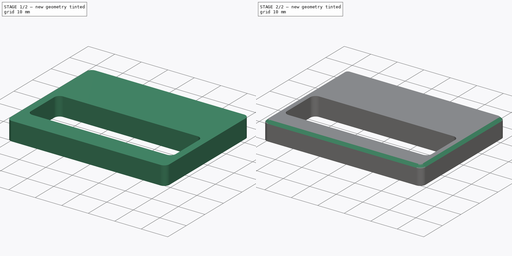
[diagram: build sequence overview — one tinted view per stage of 2, left to right]
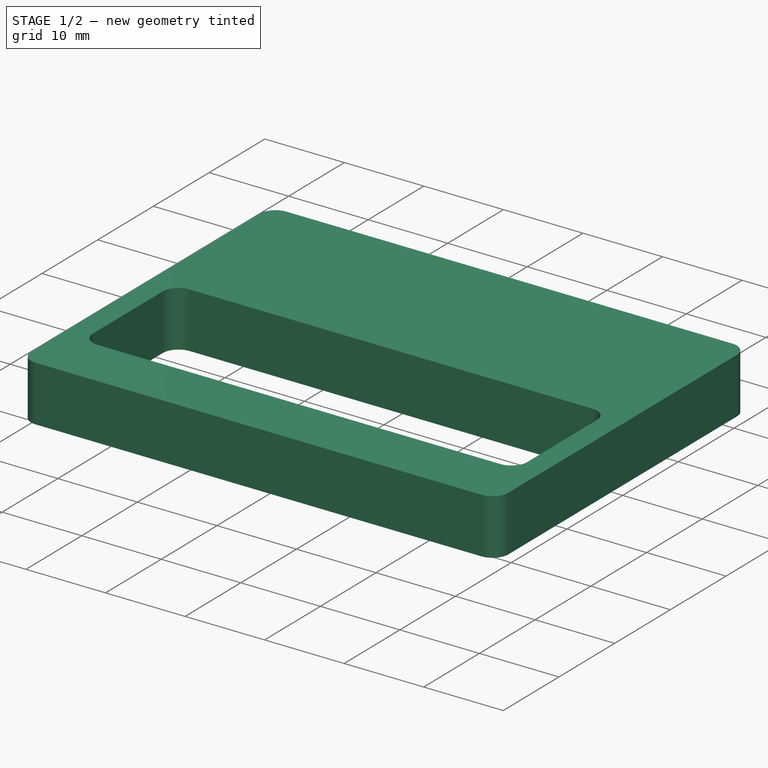
[diagram: stage 1 of 2 — iso view after this stage's code; geometry added in this stage tinted green]
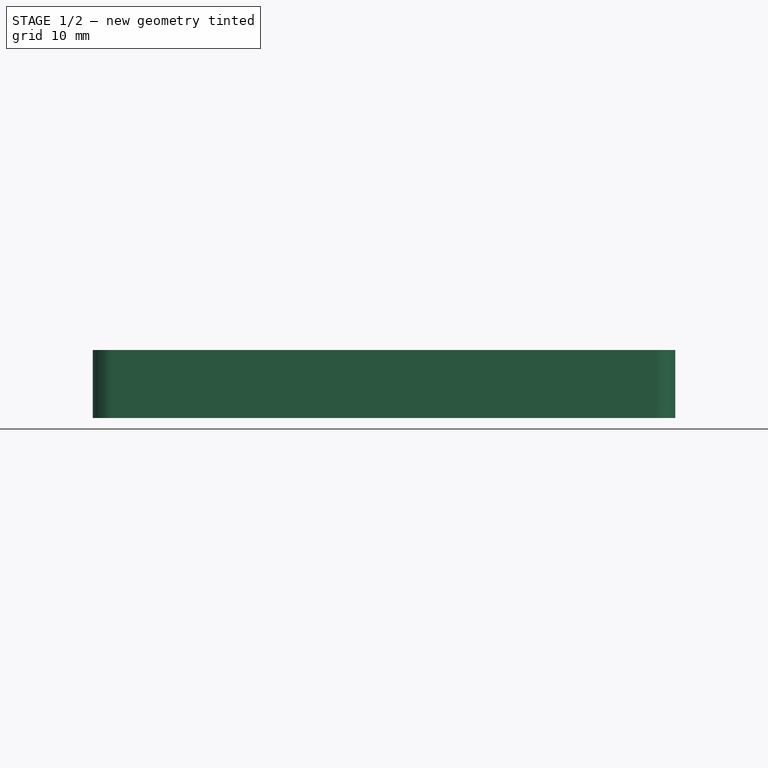
[diagram: stage 1 of 2 — front view after this stage's code; geometry added in this stage tinted green]
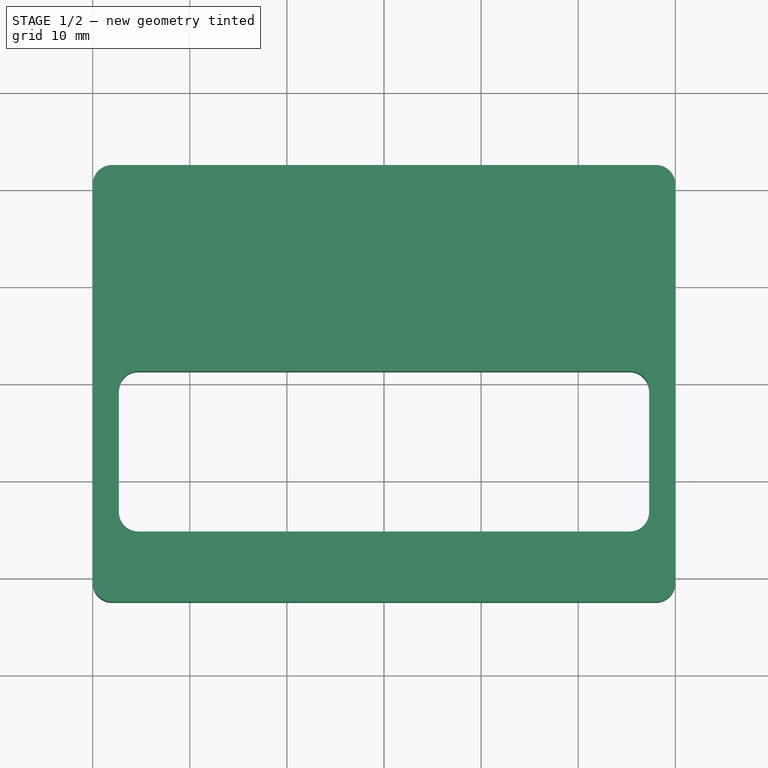
[diagram: stage 1 of 2 — top view after this stage's code; geometry added in this stage tinted green]
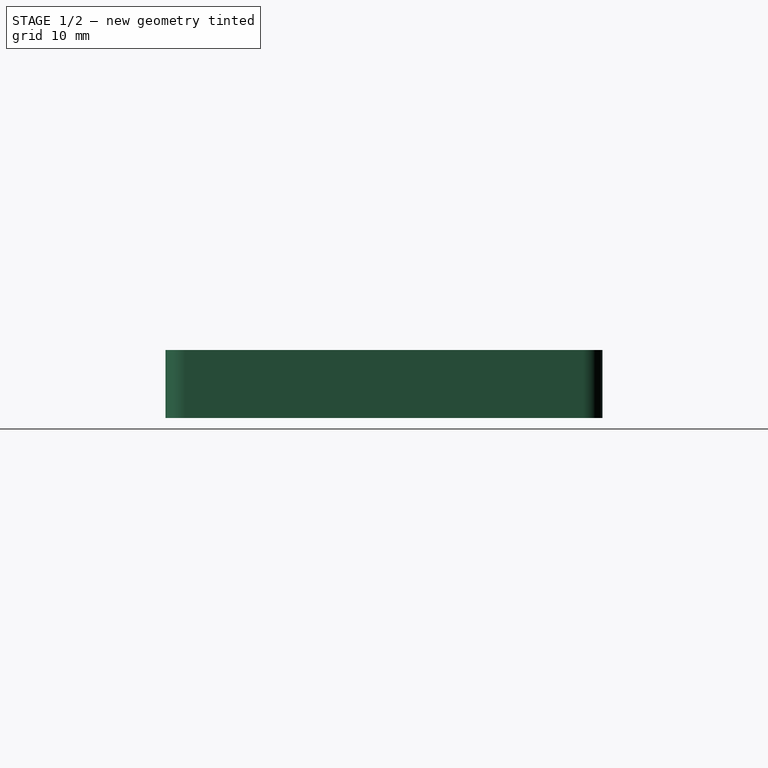
[diagram: stage 1 of 2 — right view after this stage's code; geometry added in this stage tinted green]
FCSTD DOCUMENT  (FreeCAD 0.21R33771 (Git))
Label: cloverpad-case
License: CERN Open Hardware Licence strongly-reciprocal
LicenseURL: https://cern-ohl.web.cern.ch/
objects: Sketcher::SketchObject×2, Part::Extrusion×2, Spreadsheet::Sheet×1, Part::Chamfer×1
note: 5 computed .brp shape members not serialized (recipe doc carries the construction recipe); baked Part::Feature solids carry a one-line shape summary decoded from their .brp

FEATURE [Spreadsheet::Sheet] Spreadsheet  label="parameters"
  cells = A1='Configurable Parameters; A2='Parameter Name; B2='Value; C2='Comments; A3='Switch Cutout Height; B3(switchcutoutheight)==14 mm; C3='Only change if not using MX-style switches; A4='Switch Cutout Width; B4(switchcutoutwidth)==14 mm; C4='Only change if not using MX-style switches; A5='Switch Cutout Spacing; B5(switchcutoutspacing)==19.05 mm; C5='Only change if not using MX-style switches; A6='Switch Cutout Corner Radius; B6(switchcutoutcornerradius)==0.5 mm; C6='Larger values can cause issues with fitment; A7='Screw Thread Diameter; B7(screwthreaddiameter)==2 mm; C7='Change if not using M2 screws; A8='Threaded Insert Hole Diameter; B8(threadedinsertholediameter)==3.2 mm; C8='Change based on threaded inserts; A9='Threaded Insert Hole Height; B9(threadedinsertholeheight)==4 mm; C9='Change based on threaded inserts; A10='Wall Thickness; B10(wallthickness)==2 mm; C10='Change based on material + printer compatibility; A12='Minimum Parameters (Guideline); A13='Minimum Case Width; B13(mincasewidth)==switchcutoutwidth + switchcutoutspacing * (3 - 1); C13='For three switches in a row; A15='Main Case Parameters; A16='Parameter Name; B16='Value; C16='Comments; A17='Corner Radius; B17(cornerradius)==2 mm; A18='Chamfer Distance; B18(chamferdistance)==1 mm; A20='Screw Hole Diameter; B20(screwholediameter)==screwthreaddiameter * 1.05; C20='Thread Diameter * 1.05; A21='Threaded Insert Hole Padding; B21(threadedinsertholepadding)==wallthickness + threadedinsertholediameter / 2; C21='Distance from centre of threaded insert to case edge; A23='Case Width; B23(casewidth)==60 mm; A24='Case Height; B24(caseheight)==45 mm; A26='Top Shroud Thickness; B26(topshroudthickness)==7 mm; C26='Top housing of MX-style switches is 6.6mm; A27='Top Plate Thickness; B27(topplatethickness)==1.5 mm; C27='Must be 1.5mm for MX-style switches; A28='Switch Cutout Distance Below Centre; B28(switchcutoutdistancebelowcentre)==7 mm; A30='PCB Width; B30(pcbwidth)==70 mm; A31='PCB Height; B31(pcbheight)==70 mm; A32='PCB Thickness; B32(pcbthickness)==1.6 mm; A34='Bottom Plate Thickness; B34(bottomplatethickness)==2 mm
FEATURE [Sketcher::SketchObject] Sketch  label="sketch-top-plate"
  FullyConstrained = true
  expr: Constraints[17] = <<parameters>>.caseheight
  expr: Constraints[18] = <<parameters>>.casewidth
  expr: Constraints[38] = <<parameters>>.switchcutoutcornerradius
  expr: Constraints[39] = <<parameters>>.cornerradius
  expr: Constraints[40] = <<parameters>>.switchcutoutwidth
  expr: Constraints[41] = <<parameters>>.switchcutoutheight
  expr: Constraints[94] = <<parameters>>.switchcutoutspacing
  expr: Constraints[95] = <<parameters>>.switchcutoutspacing
  expr: Constraints[96] = <<parameters>>.switchcutoutdistancebelowcentre
  sketch-geometry (43):
    g0: ArcOfCircle CenterX=-28 CenterY=20.5 CenterZ=0 NormalX=0 NormalY=0 NormalZ=1 AngleXU=0 Radius=2 StartAngle=1.5708 EndAngle=3.14159
    g1: LineSegment StartX=-28 StartY=22.5 StartZ=0 EndX=28 EndY=22.5 EndZ=0
    g2: ArcOfCircle CenterX=28 CenterY=20.5 CenterZ=0 NormalX=0 NormalY=0 NormalZ=1 AngleXU=0 Radius=2 StartAngle=3.12e-14 EndAngle=1.5708
    g3: LineSegment StartX=30 StartY=20.5 StartZ=0 EndX=30 EndY=-20.5 EndZ=0
    g4: ArcOfCircle CenterX=28 CenterY=-20.5 CenterZ=0 NormalX=0 NormalY=0 NormalZ=1 AngleXU=0 Radius=2 StartAngle=4.71239 EndAngle=6.28319
    g5: LineSegment StartX=28 StartY=-22.5 StartZ=0 EndX=-28 EndY=-22.5 EndZ=0
    g6: ArcOfCircle CenterX=-28 CenterY=-20.5 CenterZ=0 NormalX=0 NormalY=0 NormalZ=1 AngleXU=0 Radius=2 StartAngle=3.14159 EndAngle=4.71239
    g7: LineSegment StartX=-30 StartY=-20.5 StartZ=0 EndX=-30 EndY=20.5 EndZ=0
    g8: GeomPoint X=-30 Y=22.5 Z=0
    g9: GeomPoint X=30 Y=-22.5 Z=0
    g10: ArcOfCircle CenterX=-6.5 CenterY=-0.5 CenterZ=0 NormalX=0 NormalY=0 NormalZ=1 AngleXU=0 Radius=0.5 StartAngle=1.5708 EndAngle=3.14159
    g11: LineSegment StartX=-6.5 StartY=3e-16 StartZ=0 EndX=6.5 EndY=3e-16 EndZ=0
    g12: ArcOfCircle CenterX=6.5 CenterY=-0.5 CenterZ=0 NormalX=0 NormalY=0 NormalZ=1 AngleXU=0 Radius=0.5 StartAngle=1e-16 EndAngle=1.5708
    g13: LineSegment StartX=7 StartY=-0.5 StartZ=0 EndX=7 EndY=-13.5 EndZ=0
    g14: ArcOfCircle CenterX=6.5 CenterY=-13.5 CenterZ=0 NormalX=0 NormalY=0 NormalZ=1 AngleXU=0 Radius=0.5 StartAngle=4.71239 EndAngle=6.28319
    g15: LineSegment StartX=6.5 StartY=-14 StartZ=0 EndX=-6.5 EndY=-14 EndZ=0
    g16: ArcOfCircle CenterX=-6.5 CenterY=-13.5 CenterZ=0 NormalX=0 NormalY=0 NormalZ=1 AngleXU=0 Radius=0.5 StartAngle=3.14159 EndAngle=4.71239
    g17: LineSegment StartX=-7 StartY=-13.5 StartZ=0 EndX=-7 EndY=-0.5 EndZ=0
    g18: GeomPoint X=-7 Y=3e-16 Z=0
    g19: GeomPoint X=7 Y=-14 Z=0
    g20: GeomPoint X=0 Y=-7 Z=0
    g21: ArcOfCircle CenterX=-25.55 CenterY=-0.5 CenterZ=0 NormalX=0 NormalY=0 NormalZ=1 AngleXU=0 Radius=0.5 StartAngle=1.5708 EndAngle=3.14159
    g22: LineSegment StartX=-25.55 StartY=1.5e-15 StartZ=0 EndX=-12.55 EndY=1.5e-15 EndZ=0
    g23: ArcOfCircle CenterX=-12.55 CenterY=-0.5 CenterZ=0 NormalX=0 NormalY=0 NormalZ=1 AngleXU=0 Radius=0.5 StartAngle=1e-16 EndAngle=1.5708
    g24: LineSegment StartX=-12.05 StartY=-0.5 StartZ=0 EndX=-12.05 EndY=-13.5 EndZ=0
    g25: ArcOfCircle CenterX=-12.55 CenterY=-13.5 CenterZ=0 NormalX=0 NormalY=0 NormalZ=1 AngleXU=0 Radius=0.5 StartAngle=4.71239 EndAngle=6.28319
    g26: LineSegment StartX=-12.55 StartY=-14 StartZ=0 EndX=-25.55 EndY=-14 EndZ=0
    g27: ArcOfCircle CenterX=-25.55 CenterY=-13.5 CenterZ=0 NormalX=0 NormalY=0 NormalZ=1 AngleXU=0 Radius=0.5 StartAngle=3.14159 EndAngle=4.71239
    g28: LineSegment StartX=-26.05 StartY=-13.5 StartZ=0 EndX=-26.05 EndY=-0.5 EndZ=0
    g29: GeomPoint X=-26.05 Y=1.5e-15 Z=0
    g30: GeomPoint X=-12.05 Y=-14 Z=0
    g31: GeomPoint X=-19.05 Y=-7 Z=0
    g32: ArcOfCircle CenterX=12.55 CenterY=-0.5 CenterZ=0 NormalX=0 NormalY=0 NormalZ=1 AngleXU=0 Radius=0.5 StartAngle=1.5708 EndAngle=3.14159
    g33: LineSegment StartX=12.55 StartY=1.8e-15 StartZ=0 EndX=25.55 EndY=1.8e-15 EndZ=0
    g34: ArcOfCircle CenterX=25.55 CenterY=-0.5 CenterZ=0 NormalX=0 NormalY=0 NormalZ=1 AngleXU=0 Radius=0.5 StartAngle=1e-16 EndAngle=1.5708
    g35: LineSegment StartX=26.05 StartY=-0.5 StartZ=0 EndX=26.05 EndY=-13.5 EndZ=0
    g36: ArcOfCircle CenterX=25.55 CenterY=-13.5 CenterZ=0 NormalX=0 NormalY=0 NormalZ=1 AngleXU=0 Radius=0.5 StartAngle=4.71239 EndAngle=6.28319
    g37: LineSegment StartX=25.55 StartY=-14 StartZ=0 EndX=12.55 EndY=-14 EndZ=0
    g38: ArcOfCircle CenterX=12.55 CenterY=-13.5 CenterZ=0 NormalX=0 NormalY=0 NormalZ=1 AngleXU=0 Radius=0.5 StartAngle=3.14159 EndAngle=4.71239
    g39: LineSegment StartX=12.05 StartY=-13.5 StartZ=0 EndX=12.05 EndY=-0.5 EndZ=0
    g40: GeomPoint X=12.05 Y=1.8e-15 Z=0
    g41: GeomPoint X=26.05 Y=-14 Z=0
    g42: GeomPoint X=19.05 Y=-7 Z=0
  constraints (97):
    c: Tangent(g0,g1) = 1.5708
    c: Tangent(g1,g2) = 1.5708
    c: Tangent(g2,g3) = 1.5708
    c: Tangent(g3,g4) = 1.5708
    c: Tangent(g4,g5) = 1.5708
    c: Tangent(g5,g6) = 1.5708
    c: Tangent(g6,g7) = 1.5708
    c: Tangent(g7,g0) = 1.5708
    c: Horizontal(g1)
    c: Horizontal(g5)
    c: Vertical(g3)
    c: Vertical(g7)
    c: Equal(g2,g4)
    c: PointOnObject(g8,g1)
    c: PointOnObject(g8,g7)
    c: PointOnObject(g9,g3)
    c: PointOnObject(g9,g5)
    c: DistanceY(g5,g0) = 45
    c: DistanceX(g0,g2) = 60
    c: Tangent(g10,g11) = 1.5708
    c: Tangent(g11,g12) = 1.5708
    c: Tangent(g12,g13) = 1.5708
    c: Tangent(g13,g14) = 1.5708
    c: Tangent(g14,g15) = 1.5708
    c: Tangent(g15,g16) = 1.5708
    c: Tangent(g16,g17) = 1.5708
    c: Tangent(g17,g10) = 1.5708
    c: Horizontal(g11)
    c: Horizontal(g15)
    c: Vertical(g13)
    c: Vertical(g17)
    c: Equal(g10,g12)
    c: Equal(g12,g14)
    c: Equal(g14,g16)
    c: PointOnObject(g18,g11)
    c: PointOnObject(g18,g17)
    c: PointOnObject(g19,g13)
    c: PointOnObject(g19,g15)
    c: Radius(g10) = 0.5
    c: Radius(g0) = 2
    c: DistanceX(g10,g12) = 14
    c: DistanceY(g15,g10) = 14
    c: Symmetric(g10,g14,g20)
    c: Symmetric(g0,g2,g-2)
    c: PointOnObject(g20,g-2)
    c: Symmetric(g0,g5,g-1)
    c: Tangent(g21,g22) = 1.5708
    c: Tangent(g22,g23) = 1.5708
    c: Tangent(g23,g24) = 1.5708
    c: Tangent(g24,g25) = 1.5708
    c: Tangent(g25,g26) = 1.5708
    c: Tangent(g26,g27) = 1.5708
    c: Tangent(g27,g28) = 1.5708
    c: Tangent(g28,g21) = 1.5708
    c: Horizontal(g22)
    c: Horizontal(g26)
    c: Vertical(g24)
    c: Vertical(g28)
    c: Equal(g21,g23)
    c: Equal(g23,g25)
    c: Equal(g25,g27)
    c: PointOnObject(g29,g22)
    c: PointOnObject(g29,g28)
    c: PointOnObject(g30,g24)
    c: PointOnObject(g30,g26)
    c: Equal(g21,g10)
    c: Equal(g22,g11)
    c: Equal(g17,g28)
    c: Symmetric(g21,g25,g31)
    c: Horizontal(g31,g20)
    c: Tangent(g32,g33) = 1.5708
    c: Tangent(g33,g34) = 1.5708
    c: Tangent(g34,g35) = 1.5708
    c: Tangent(g35,g36) = 1.5708
    c: Tangent(g36,g37) = 1.5708
    c: Tangent(g37,g38) = 1.5708
    c: Tangent(g38,g39) = 1.5708
    c: Tangent(g39,g32) = 1.5708
    c: Horizontal(g33)
    c: Horizontal(g37)
    c: Vertical(g35)
    c: Vertical(g39)
    c: Equal(g32,g34)
    c: Equal(g34,g36)
    c: Equal(g36,g38)
    c: PointOnObject(g40,g33)
    c: PointOnObject(g40,g39)
    c: PointOnObject(g41,g35)
    c: PointOnObject(g41,g37)
    c: Equal(g32,g10)
    c: Equal(g33,g11)
    c: Equal(g39,g17)
    c: Symmetric(g32,g36,g42)
    c: Horizontal(g42,g20)
    c: DistanceX(g31,g20) = 19.05
    c: DistanceX(g20,g42) = 19.05
    c: DistanceY(g20,g-1) = 7
FEATURE [Part::Extrusion] Extrude  label="top-plate"
  Base = -> Sketch
  Dir = (0,0,1)
  DirMode = 2
  FaceMakerClass = Part::FaceMakerBullseye
  LengthFwd = 1.5
  LengthRev = 0
  Solid = true
  Symmetric = false
  expr: LengthFwd = Spreadsheet.B27
FEATURE [Sketcher::SketchObject] Sketch001  label="sketch-top-shroud"
  FullyConstrained = true
  MapMode = 5
  Placement = pos=(0,0,1.5) rot=(0,0,1;0rad)
  Support = -> [Extrude]
  expr: Constraints[19] = <<parameters>>.cornerradius
  expr: Constraints[20] = <<parameters>>.casewidth
  expr: Constraints[21] = <<parameters>>.caseheight
  expr: Constraints[42] = <<parameters>>.cornerradius
  expr: Constraints[43] = <<parameters>>.mincasewidth + 2.5 mm
  expr: Constraints[44] = <<parameters>>.switchcutoutheight + 2.5 mm
  expr: Constraints[47] = <<parameters>>.switchcutoutdistancebelowcentre
  sketch-geometry (21):
    g0: ArcOfCircle CenterX=-28 CenterY=20.5 CenterZ=0 NormalX=0 NormalY=0 NormalZ=1 AngleXU=0 Radius=2 StartAngle=1.5708 EndAngle=3.14159
    g1: LineSegment StartX=-28 StartY=22.5 StartZ=0 EndX=28 EndY=22.5 EndZ=0
    g2: ArcOfCircle CenterX=28 CenterY=20.5 CenterZ=0 NormalX=0 NormalY=0 NormalZ=1 AngleXU=0 Radius=2 StartAngle=-9e-16 EndAngle=1.5708
    g3: LineSegment StartX=30 StartY=20.5 StartZ=0 EndX=30 EndY=-20.5 EndZ=0
    g4: ArcOfCircle CenterX=28 CenterY=-20.5 CenterZ=0 NormalX=0 NormalY=0 NormalZ=1 AngleXU=0 Radius=2 StartAngle=4.71239 EndAngle=6.28319
    g5: LineSegment StartX=28 StartY=-22.5 StartZ=0 EndX=-28 EndY=-22.5 EndZ=0
    g6: ArcOfCircle CenterX=-28 CenterY=-20.5 CenterZ=0 NormalX=0 NormalY=0 NormalZ=1 AngleXU=0 Radius=2 StartAngle=3.14159 EndAngle=4.71239
    g7: LineSegment StartX=-30 StartY=-20.5 StartZ=0 EndX=-30 EndY=20.5 EndZ=0
    g8: GeomPoint X=-30 Y=22.5 Z=0
    g9: GeomPoint X=30 Y=-22.5 Z=0
    g10: ArcOfCircle CenterX=-25.3 CenterY=-0.75 CenterZ=0 NormalX=0 NormalY=0 NormalZ=1 AngleXU=0 Radius=2 StartAngle=1.5708 EndAngle=3.14159
    g11: LineSegment StartX=-25.3 StartY=1.25 StartZ=0 EndX=25.3 EndY=1.25 EndZ=0
    g12: ArcOfCircle CenterX=25.3 CenterY=-0.75 CenterZ=0 NormalX=0 NormalY=0 NormalZ=1 AngleXU=0 Radius=2 StartAngle=1e-16 EndAngle=1.5708
    g13: LineSegment StartX=27.3 StartY=-0.75 StartZ=0 EndX=27.3 EndY=-13.25 EndZ=0
    g14: ArcOfCircle CenterX=25.3 CenterY=-13.25 CenterZ=0 NormalX=0 NormalY=0 NormalZ=1 AngleXU=0 Radius=2 StartAngle=4.71239 EndAngle=6.28319
    g15: LineSegment StartX=25.3 StartY=-15.25 StartZ=0 EndX=-25.3 EndY=-15.25 EndZ=0
    g16: ArcOfCircle CenterX=-25.3 CenterY=-13.25 CenterZ=0 NormalX=0 NormalY=0 NormalZ=1 AngleXU=0 Radius=2 StartAngle=3.14159 EndAngle=4.71239
    g17: LineSegment StartX=-27.3 StartY=-13.25 StartZ=0 EndX=-27.3 EndY=-0.75 EndZ=0
    g18: GeomPoint X=-27.3 Y=1.25 Z=0
    g19: GeomPoint X=27.3 Y=-15.25 Z=0
    g20: GeomPoint X=0 Y=-7 Z=0
  constraints (48):
    c: Tangent(g0,g1) = 1.5708
    c: Tangent(g1,g2) = 1.5708
    c: Tangent(g2,g3) = 1.5708
    c: Tangent(g3,g4) = 1.5708
    c: Tangent(g4,g5) = 1.5708
    c: Tangent(g5,g6) = 1.5708
    c: Tangent(g6,g7) = 1.5708
    c: Tangent(g7,g0) = 1.5708
    c: Horizontal(g1)
    c: Horizontal(g5)
    c: Vertical(g3)
    c: Vertical(g7)
    c: Equal(g0,g2)
    c: Equal(g2,g4)
    c: Equal(g4,g6)
    c: PointOnObject(g8,g1)
    c: PointOnObject(g8,g7)
    c: PointOnObject(g9,g3)
    c: PointOnObject(g9,g5)
    c: Radius(g0) = 2
    c: DistanceX(g0,g2) = 60
    c: DistanceY(g5,g0) = 45
    c: Symmetric(g0,g4,g-1)
    c: Tangent(g10,g11) = 1.5708
    c: Tangent(g11,g12) = 1.5708
    c: Tangent(g12,g13) = 1.5708
    c: Tangent(g13,g14) = 1.5708
    c: Tangent(g14,g15) = 1.5708
    c: Tangent(g15,g16) = 1.5708
    c: Tangent(g16,g17) = 1.5708
    c: Tangent(g17,g10) = 1.5708
    c: Horizontal(g11)
    c: Horizontal(g15)
    c: Vertical(g13)
    c: Vertical(g17)
    c: Equal(g10,g12)
    c: Equal(g12,g14)
    c: Equal(g14,g16)
    c: PointOnObject(g18,g11)
    c: PointOnObject(g18,g17)
    c: PointOnObject(g19,g13)
    c: PointOnObject(g19,g15)
    c: Radius(g10) = 2
    c: DistanceX(g10,g12) = 54.6
    c: DistanceY(g15,g10) = 16.5
    c: Symmetric(g10,g14,g20)
    c: PointOnObject(g20,g-2)
    c: DistanceY(g20,g-1) = 7
FEATURE [Part::Extrusion] Extrude001  label="top-shroud"
  Base = -> Sketch001
  Dir = (0,0,1)
  DirMode = 2
  FaceMakerClass = Part::FaceMakerBullseye
  LengthFwd = 7
  LengthRev = 0
  Solid = true
  Symmetric = false
  expr: LengthFwd = <<parameters>>.topshroudthickness
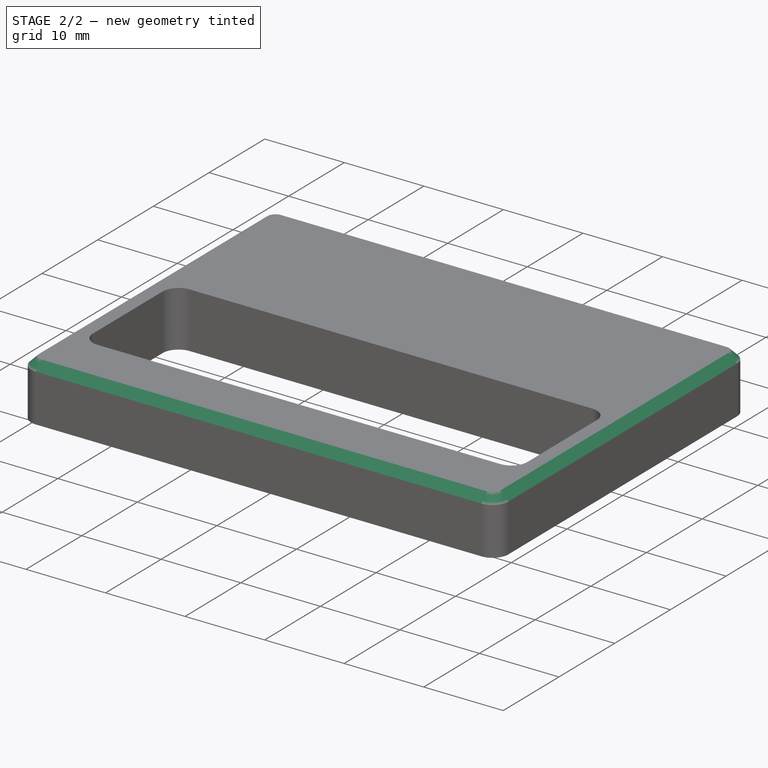
[diagram: stage 2 of 2 — iso view after this stage's code; geometry added in this stage tinted green]
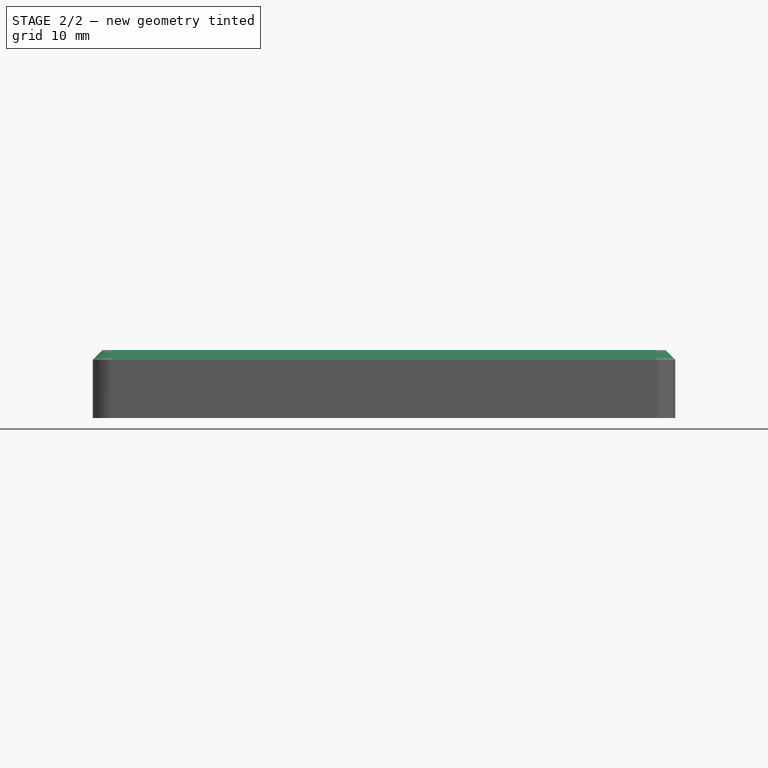
[diagram: stage 2 of 2 — front view after this stage's code; geometry added in this stage tinted green]
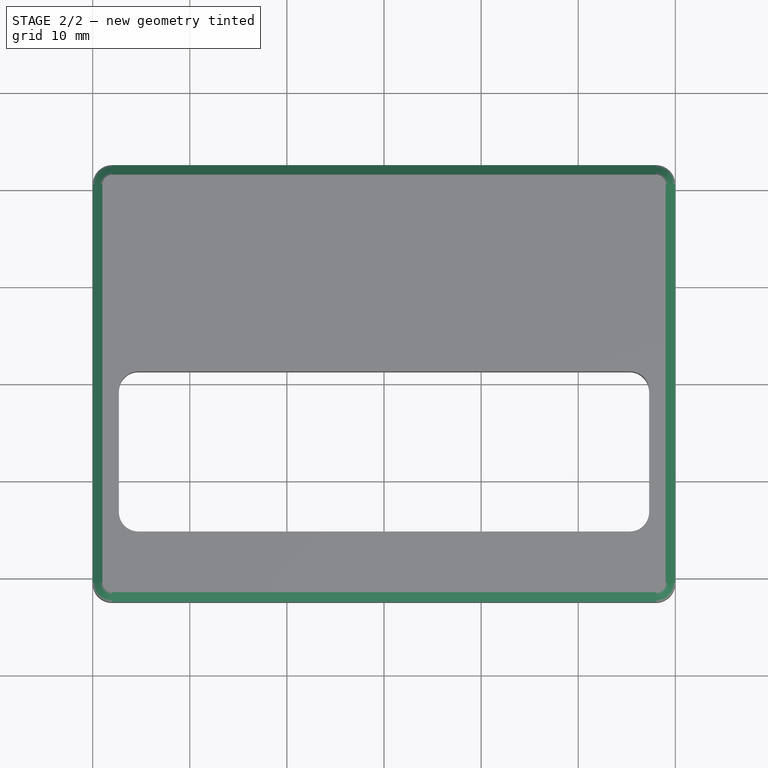
[diagram: stage 2 of 2 — top view after this stage's code; geometry added in this stage tinted green]
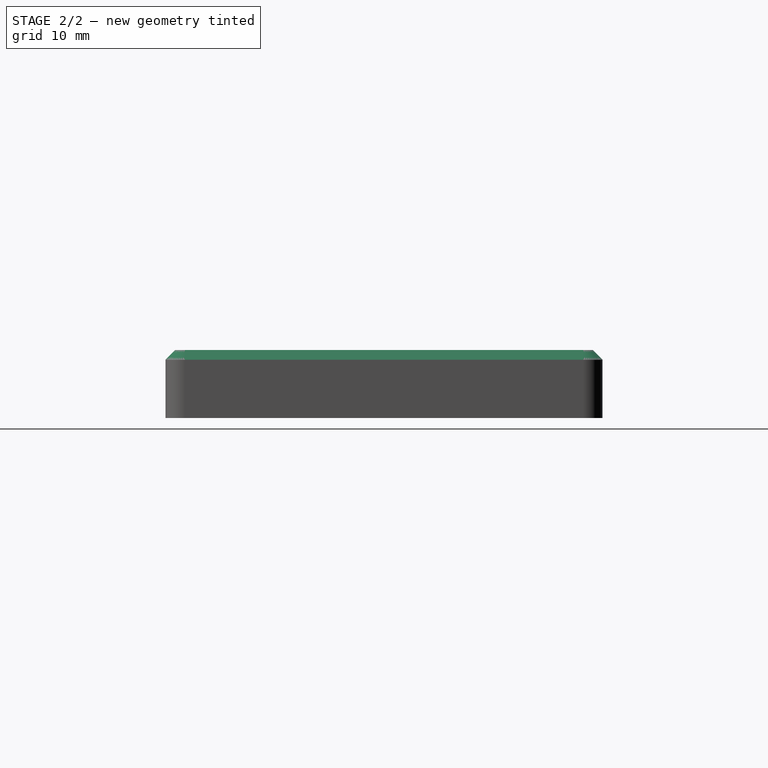
[diagram: stage 2 of 2 — right view after this stage's code; geometry added in this stage tinted green]
FEATURE [Part::Chamfer] Chamfer  label="top-shroud-chamfered"
  Base = -> Extrude001
  Edges = 8 edges r=1: [Edge4,Edge7,Edge10,Edge13,Edge16,Edge19,Edge22,Edge24]
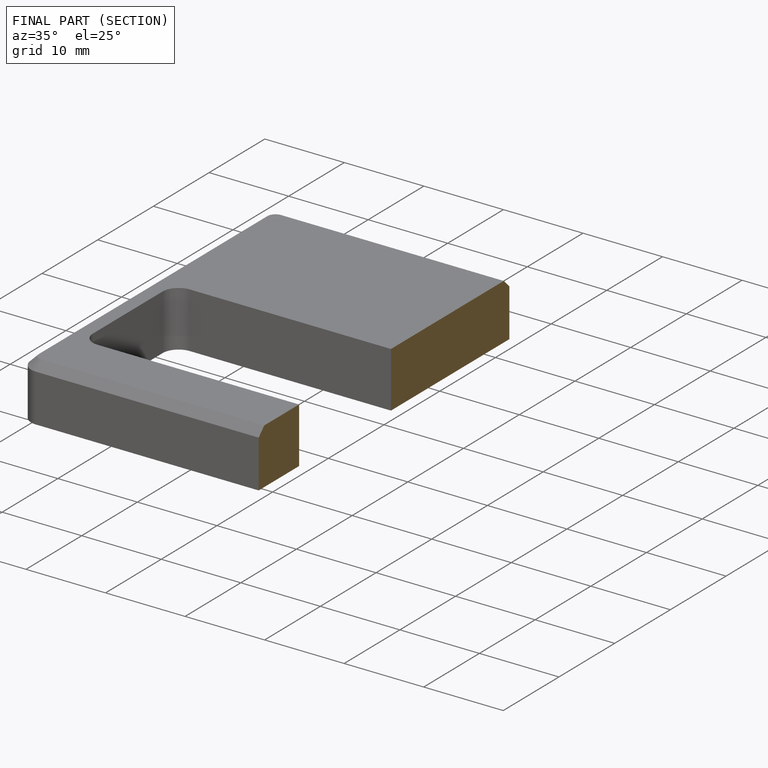
[diagram: finished part — half-section view (interior)]
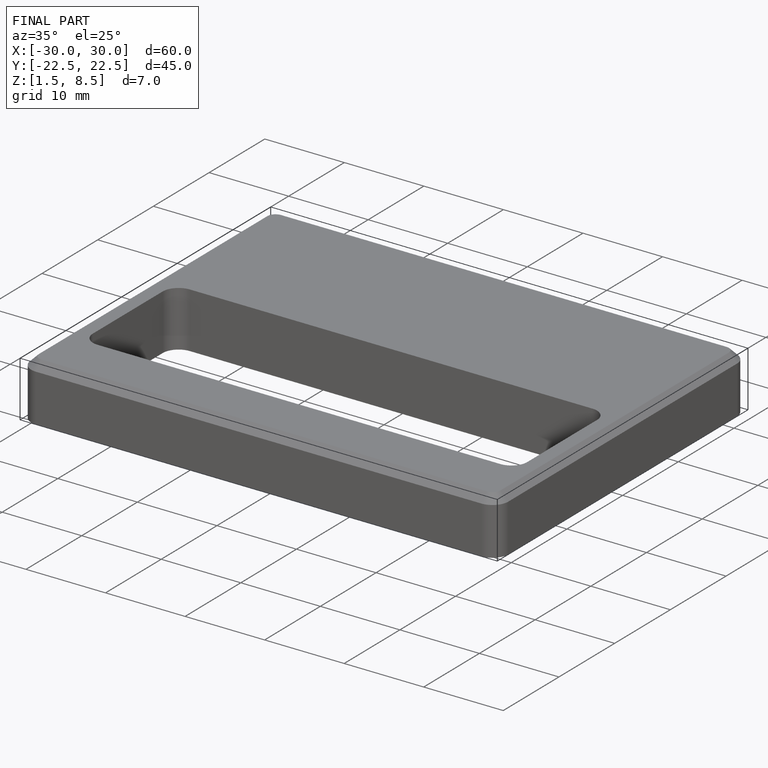
[diagram: finished part — iso view with bounding-box wireframe]
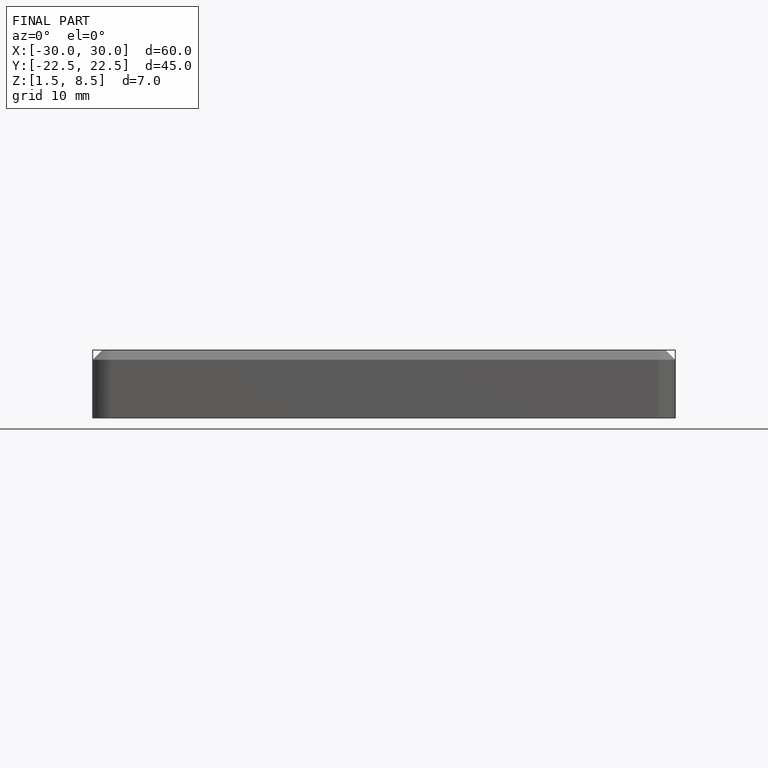
[diagram: finished part — front view with bounding-box wireframe]
